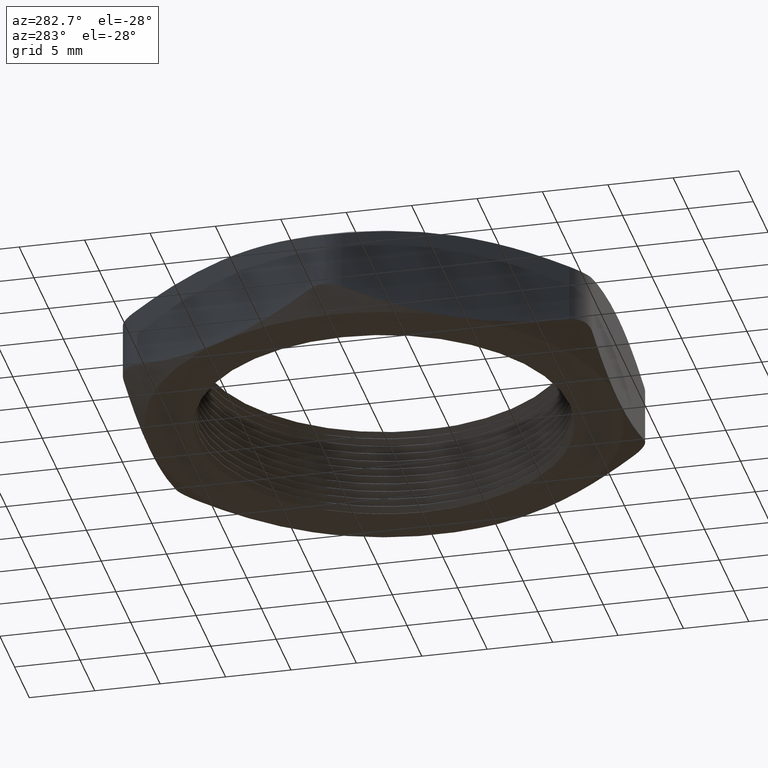
[diagram: clean part render]
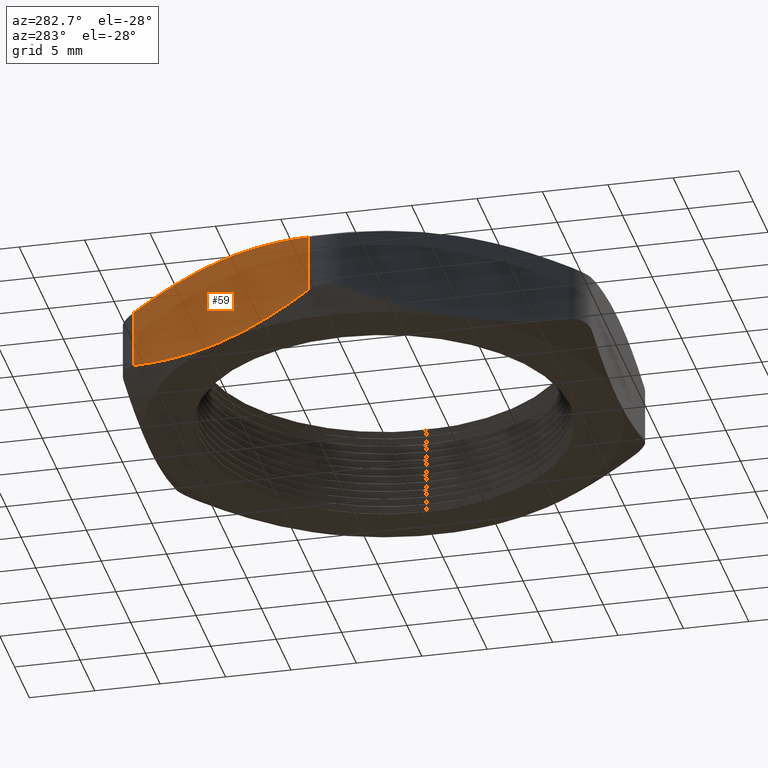
[diagram: same view with one face highlighted and labeled with its STEP entity id]
A machine part, auxiliary view. The second image highlights one B-rep face of the part: STEP entity #59.
In plain terms, the highlighted planar face has unit normal (0.866, -0.5, 0).
Its self-contained STEP definition (entity closure, byte-faithful):
#46 = ORIENTED_EDGE ( 'NONE', *, *, #47, .F. ) ;
#47 = EDGE_CURVE ( 'NONE', #582, #128, #974, .T. ) ;
#59 = ADVANCED_FACE ( 'NONE', ( #944 ), #943, .F. ) ;
#60 = EDGE_LOOP ( 'NONE', ( #61, #62, #120, #123, #126, #46 ) ) ;
#61 = ORIENTED_EDGE ( 'NONE', *, *, #613, .F. ) ;
#62 = ORIENTED_EDGE ( 'NONE', *, *, #63, .T. ) ;
#63 = EDGE_CURVE ( 'NONE', #624, #119, #1001, .T. ) ;
#119 = VERTEX_POINT ( 'NONE', #1096 ) ;
#120 = ORIENTED_EDGE ( 'NONE', *, *, #121, .F. ) ;
#121 = EDGE_CURVE ( 'NONE', #122, #119, #1137, .T. ) ;
#122 = VERTEX_POINT ( 'NONE', #1136 ) ;
#123 = ORIENTED_EDGE ( 'NONE', *, *, #124, .F. ) ;
#124 = EDGE_CURVE ( 'NONE', #125, #122, #1127, .T. ) ;
#125 = VERTEX_POINT ( 'NONE', #1126 ) ;
#126 = ORIENTED_EDGE ( 'NONE', *, *, #127, .T. ) ;
#127 = EDGE_CURVE ( 'NONE', #125, #128, #1119, .T. ) ;
#128 = VERTEX_POINT ( 'NONE', #1115 ) ;
#582 = VERTEX_POINT ( 'NONE', #1976 ) ;
#613 = EDGE_CURVE ( 'NONE', #624, #582, #2033, .T. ) ;
#624 = VERTEX_POINT ( 'NONE', #2060 ) ;
#943 = PLANE ( 'NONE',  #1005 ) ;
#944 = FACE_OUTER_BOUND ( 'NONE', #60, .T. ) ;
#965 = CARTESIAN_POINT ( 'NONE',  ( -0.4358994532381674200, 0.6550000000000001400, 0.04721958134638865000 ) ) ;
#966 = CARTESIAN_POINT ( 'NONE',  ( -0.4644557774193917600, 0.6055389956407120100, 0.03258064907318723700 ) ) ;
#967 = CARTESIAN_POINT ( 'NONE',  ( -0.4932411438816929900, 0.5556812784135166700, 0.02070721915129452400 ) ) ;
#968 = CARTESIAN_POINT ( 'NONE',  ( -0.5368810850272546200, 0.4800946831100884600, 0.008474044122454033000 ) ) ;
#969 = CARTESIAN_POINT ( 'NONE',  ( -0.5515047377463945200, 0.4547657736082952900, 0.005326100994861253600 ) ) ;
#970 = CARTESIAN_POINT ( 'NONE',  ( -0.5809224072977446900, 0.4038128753050854700, 0.001087225144293999700 ) ) ;
#971 = CARTESIAN_POINT ( 'NONE',  ( -0.5957721708270429200, 0.3780923303919570000, -7.503244611504626400E-019 ) ) ;
#972 = CARTESIAN_POINT ( 'NONE',  ( -0.6105479096680291900, 0.3525000000000000900, 0.0000000000000000000 ) ) ;
#974 = B_SPLINE_CURVE_WITH_KNOTS ( 'NONE', 3,
 ( #972, #971, #970, #969, #968, #967, #966, #965 ),
 .UNSPECIFIED., .F., .F.,
 ( 4, 2, 2, 4 ),
 ( 0.01046121909833014500, 0.01269016365193541400, 0.01491910820554068200, 0.01937699731275122100 ),
 .UNSPECIFIED. ) ;
#998 = DIRECTION ( 'NONE',  ( 0.0000000000000000000, 0.0000000000000000000, 1.000000000000000000 ) ) ;
#999 = VECTOR ( 'NONE', #998, 39.37007874015748100 ) ;
#1000 = CARTESIAN_POINT ( 'NONE',  ( -0.7851963660978911200, 0.05000000000000001000, 0.2700000000000000200 ) ) ;
#1001 = LINE ( 'NONE', #1000, #999 ) ;
#1002 = DIRECTION ( 'NONE',  ( 0.5000000000000001100, 0.8660254037844386000, 0.0000000000000000000 ) ) ;
#1003 = DIRECTION ( 'NONE',  ( 0.8660254037844386000, -0.5000000000000001100, 0.0000000000000000000 ) ) ;
#1004 = CARTESIAN_POINT ( 'NONE',  ( -0.4070319397786861800, 0.7049999999999999600, 0.2700000000000000200 ) ) ;
#1005 = AXIS2_PLACEMENT_3D ( 'NONE', #1004, #1003, #1002 ) ;
#1096 = CARTESIAN_POINT ( 'NONE',  ( -0.7851963660978700200, 0.05000000000003676500, 0.2227804186536222800 ) ) ;
#1115 = CARTESIAN_POINT ( 'NONE',  ( -0.4358994532381674200, 0.6550000000000001400, 0.04721958134638865000 ) ) ;
#1116 = DIRECTION ( 'NONE',  ( 0.0000000000000000000, 0.0000000000000000000, -1.000000000000000000 ) ) ;
#1117 = VECTOR ( 'NONE', #1116, 39.37007874015748100 ) ;
#1118 = CARTESIAN_POINT ( 'NONE',  ( -0.4358994532381674800, 0.6550000000000000300, 0.2700000000000000200 ) ) ;
#1119 = LINE ( 'NONE', #1118, #1117 ) ;
#1120 = CARTESIAN_POINT ( 'NONE',  ( -0.6105479096680291900, 0.3525000000000000900, 0.2700000000000000200 ) ) ;
#1121 = CARTESIAN_POINT ( 'NONE',  ( -0.5808746009064212900, 0.4038956784037837600, 0.2700000000000000700 ) ) ;
#1122 = CARTESIAN_POINT ( 'NONE',  ( -0.5515158526525255600, 0.4547465220261550600, 0.2656202652624304900 ) ) ;
#1123 = CARTESIAN_POINT ( 'NONE',  ( -0.4933393464453332800, 0.5555111865838585600, 0.2493284007340981200 ) ) ;
#1124 = CARTESIAN_POINT ( 'NONE',  ( -0.4645190381314640600, 0.6054294248732791100, 0.2374517804956083600 ) ) ;
#1125 = CARTESIAN_POINT ( 'NONE',  ( -0.4358994532381674800, 0.6550000000000000300, 0.2227804186536114200 ) ) ;
#1126 = CARTESIAN_POINT ( 'NONE',  ( -0.4358994532381674800, 0.6550000000000000300, 0.2227804186536114200 ) ) ;
#1127 = B_SPLINE_CURVE_WITH_KNOTS ( 'NONE', 3,
 ( #1125, #1124, #1123, #1122, #1121, #1120 ),
 .UNSPECIFIED., .F., .F.,
 ( 4, 2, 4 ),
 ( 0.001508684045643897500, 0.005984951571987017300, 0.01046121909833013800 ),
 .UNSPECIFIED. ) ;
#1128 = CARTESIAN_POINT ( 'NONE',  ( -0.7851963660978700200, 0.05000000000003676500, 0.2227804186536222800 ) ) ;
#1129 = CARTESIAN_POINT ( 'NONE',  ( -0.7566400419166491300, 0.09946100435931888600, 0.2374193509268205900 ) ) ;
#1130 = CARTESIAN_POINT ( 'NONE',  ( -0.7278546754543513400, 0.1493187215865081900, 0.2492927808487105700 ) ) ;
#1131 = CARTESIAN_POINT ( 'NONE',  ( -0.6842147343087944300, 0.2249053168899272600, 0.2615259558775480700 ) ) ;
#1132 = CARTESIAN_POINT ( 'NONE',  ( -0.6695910815896561900, 0.2502342263917173800, 0.2646738990051400500 ) ) ;
#1133 = CARTESIAN_POINT ( 'NONE',  ( -0.6401734120383103500, 0.3011871246949210900, 0.2689127748557063000 ) ) ;
#1134 = CARTESIAN_POINT ( 'NONE',  ( -0.6253236485090139000, 0.3269076696080462900, 0.2700000000000000700 ) ) ;
#1135 = CARTESIAN_POINT ( 'NONE',  ( -0.6105479096680291900, 0.3525000000000000900, 0.2700000000000000200 ) ) ;
#1136 = CARTESIAN_POINT ( 'NONE',  ( -0.6105479096680291900, 0.3525000000000000900, 0.2700000000000000200 ) ) ;
#1137 = B_SPLINE_CURVE_WITH_KNOTS ( 'NONE', 3,
 ( #1135, #1134, #1133, #1132, #1131, #1130, #1129, #1128 ),
 .UNSPECIFIED., .F., .F.,
 ( 4, 2, 2, 4 ),
 ( 0.01046121909833013800, 0.01269016365193513500, 0.01491910820554013200, 0.01937699731275011700 ),
 .UNSPECIFIED. ) ;
#1976 = CARTESIAN_POINT ( 'NONE',  ( -0.6105479096680291900, 0.3525000000000000900, 0.0000000000000000000 ) ) ;
#2033 = B_SPLINE_CURVE_WITH_KNOTS ( 'NONE', 3,
 ( #2086, #2085, #2084, #2083, #2082, #2081 ),
 .UNSPECIFIED., .F., .F.,
 ( 4, 2, 4 ),
 ( 0.001508684045643894900, 0.005984951571987019900, 0.01046121909833014500 ),
 .UNSPECIFIED. ) ;
#2060 = CARTESIAN_POINT ( 'NONE',  ( -0.7851963660978911200, 0.04999999999999996100, 0.04721958134638867800 ) ) ;
#2081 = CARTESIAN_POINT ( 'NONE',  ( -0.6105479096680291900, 0.3525000000000000900, 0.0000000000000000000 ) ) ;
#2082 = CARTESIAN_POINT ( 'NONE',  ( -0.6402212184296372000, 0.3011043215962164200, 1.867474214418929000E-018 ) ) ;
#2083 = CARTESIAN_POINT ( 'NONE',  ( -0.6695799666835327000, 0.2502534779738450600, 0.004379734737569450500 ) ) ;
#2084 = CARTESIAN_POINT ( 'NONE',  ( -0.7277564728907253100, 0.1494888134161416200, 0.02067159926590189700 ) ) ;
#2085 = CARTESIAN_POINT ( 'NONE',  ( -0.7565767812045941500, 0.09957057512672068400, 0.03254821950439163600 ) ) ;
#2086 = CARTESIAN_POINT ( 'NONE',  ( -0.7851963660978911200, 0.04999999999999996100, 0.04721958134638867800 ) ) ;